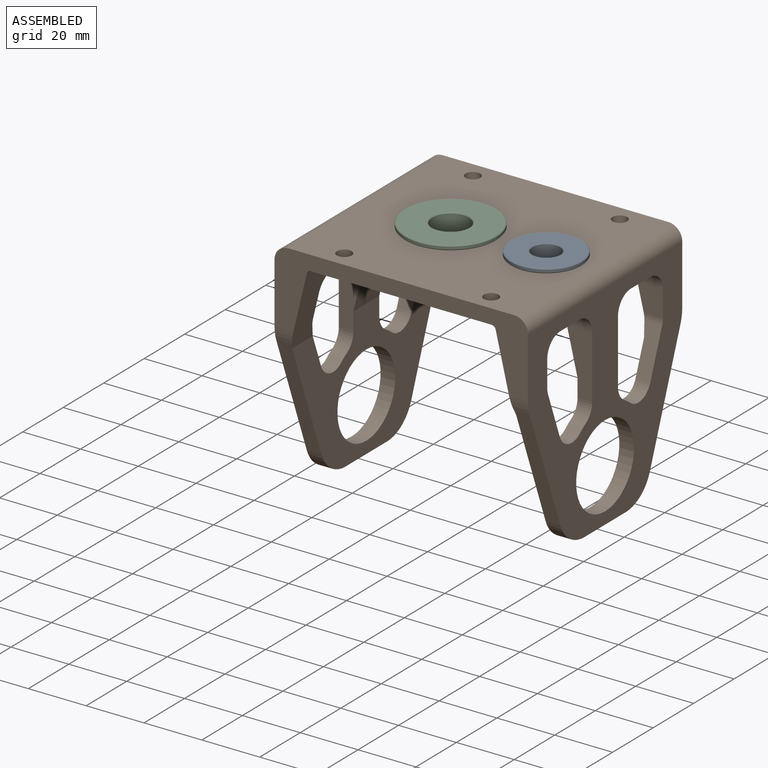
[diagram: assembled view]
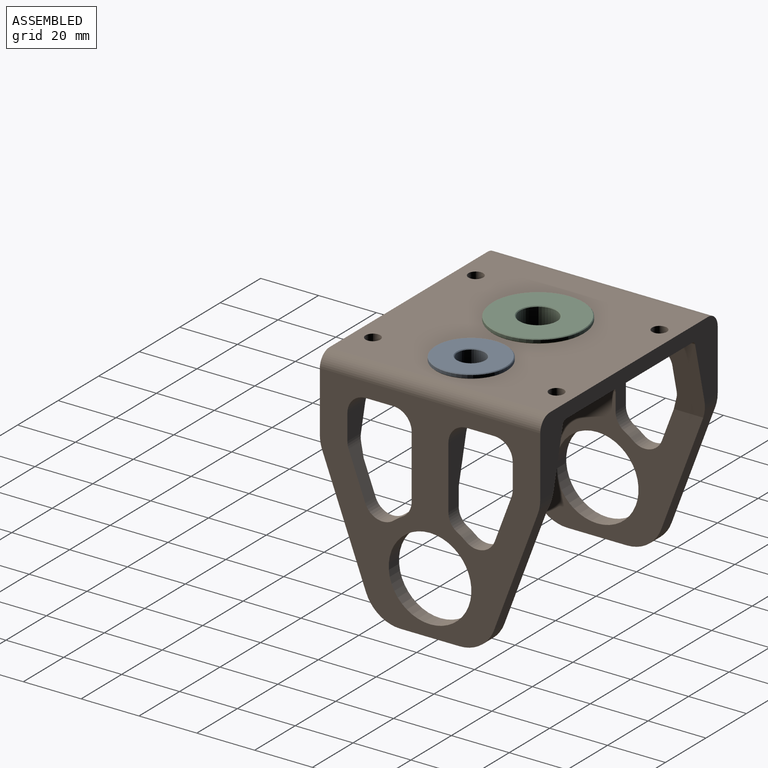
[diagram: assembled view, second angle]
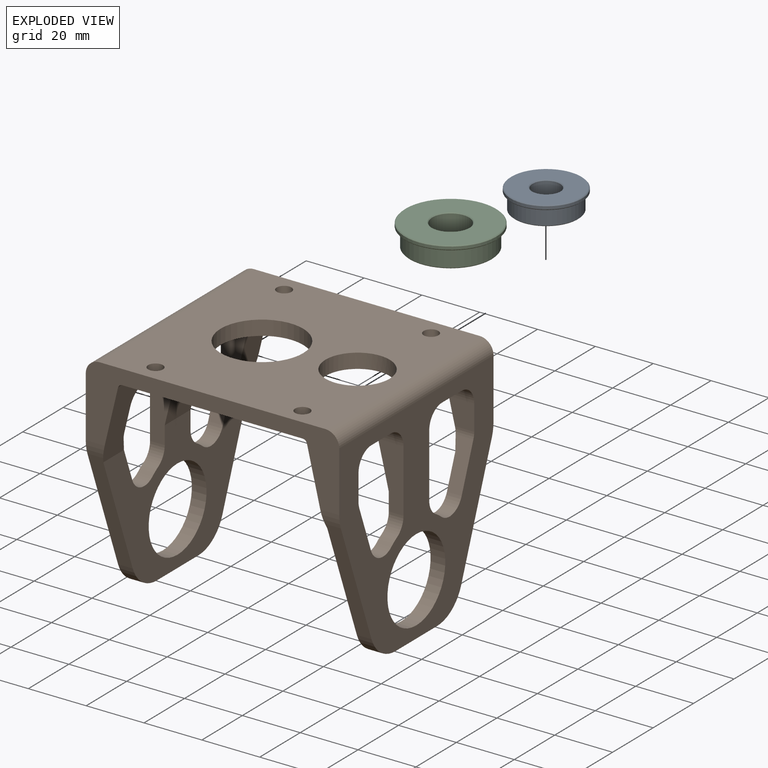
[diagram: exploded view]
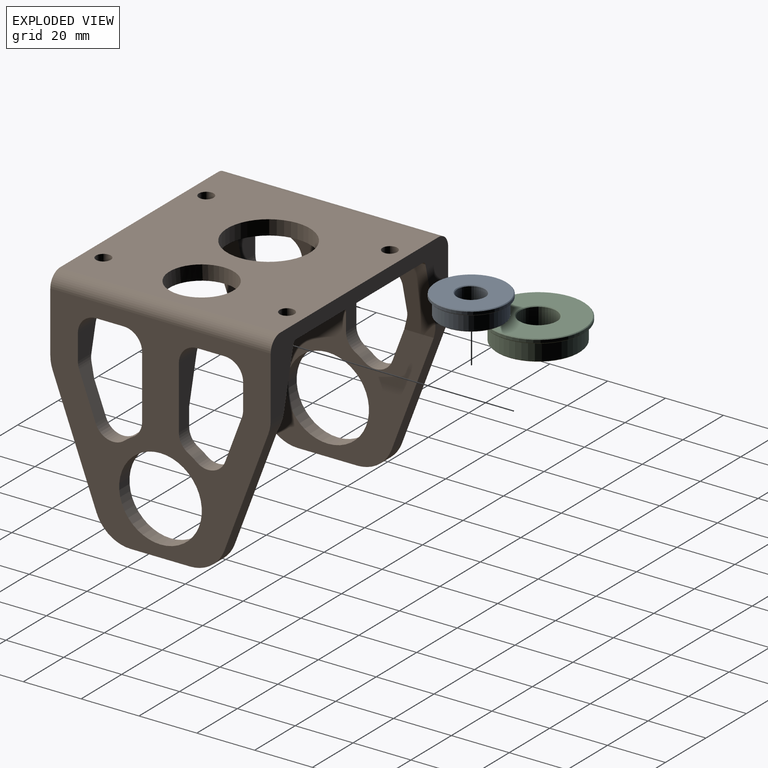
[diagram: exploded view, second angle]
ASSEMBLY  parts=3 mates=2
PART A: 11 faces, bbox 7.2x24.7x24.7 mm
  f0: cone r=12.35mm half-angle=45deg, axis (1,0,0), area 27.1mm2, adj f7,f9
  f1: cone r=12.1mm half-angle=45deg, axis (-1,0,0), area 27.1mm2, adj f7,f8
  f2: cone r=10.87mm half-angle=45deg, axis (-1,0,0), area 24.4mm2, adj f6,f10
  f3: cone r=4.77mm half-angle=45deg, axis (1,0,0), area 10.9mm2, adj f5,f10
  f4: cone r=5.02mm half-angle=45deg, axis (-1,0,0), area 10.9mm2, adj f5,f9
  f5: cylinder r=4.77mm len=9.53mm, axis (1,0,0), area 199.4mm2, adj f3,f4
  f6: cylinder r=11.12mm len=22.23mm, axis (-1,0,0), area 376.4mm2, adj f2,f8
  f7: cylinder r=12.35mm len=24.69mm, axis (-1,0,0), area 79.1mm2, adj f0,f1
  f8: plane 24.19x24.19mm, normal (1,0,0), area 71.5mm2, adj f1,f6
  f9: plane 24.19x24.19mm, normal (-1,0,0), area 380.6mm2, adj f0,f4
  f10: plane 21.73x21.73mm, normal (1,0,0), area 291.8mm2, adj f2,f3
PART B: 80 faces, bbox 79.4x76.8x88.3 mm
  f0: cylinder r=2.55mm len=5.11mm, axis (-1,0,0), area 81.5mm2, adj f14,f19
  f1: cylinder r=2.55mm len=5.11mm, axis (-1,0,0), area 81.5mm2, adj f14,f19
  f2: cylinder r=2.55mm len=5.11mm, axis (-1,0,0), area 81.5mm2, adj f14,f19
  f3: cylinder r=2.55mm len=5.11mm, axis (-1,0,0), area 81.5mm2, adj f14,f19
  f4: cylinder r=14.28mm len=28.56mm, axis (-1,0,0), area 455.8mm2, adj f14,f19
  f5: cylinder r=14.29mm len=28.58mm, axis (0,0,-1), area 456mm2, adj f10,f12
  f6: cylinder r=14.29mm len=28.58mm, axis (0,0,-1), area 456mm2, adj f16,f18
  f7: cylinder r=11.11mm len=22.21mm, axis (-1,0,0), area 444.6mm2, adj f13,f14,f19,f22,f25
  f8: cylinder r=1.52mm len=12.7mm, axis (0,1,0), area 4.5mm2, adj f12,f13,f40,f52
  f9: cylinder r=1.52mm len=10.31mm, axis (0,1,0), area 3.6mm2, adj f12,f13,f28,f42
  f10: plane 76.2x73.98mm, normal (0,0,1), area 2604.8mm2, adj f5,f11,f20,f21,f27,f28,f30,f32
  f11: plane 20.5x5.08mm, normal (1,0,0), area 104.1mm2, adj f10,f12,f38,f39
  f12: plane 73.21x46.81mm, normal (0,0,-1), area 1476mm2, adj f5,f8,f9,f11,f23,f28,f30,f38
  f13: plane 76.84x25.96mm, normal (0.23,0,-0.97), area 960.5mm2, adj f7,f8,f9,f20,f21,f22,f23,f25
  f14: plane 76.2x62.36mm, normal (1,0,0), area 3679.8mm2, adj f0,f1,f2,f3,f4,f7,f20,f21
  f15: plane 76.84x26.13mm, normal (0.23,0,0.97), area 1037.6mm2, adj f16,f20,f21,f24,f29,f31,f33,f34
  f16: plane 73.34x46.99mm, normal (0,0,1), area 1481.9mm2, adj f6,f15,f17,f29,f31,f36,f37,f45
  f17: plane 20.5x5.08mm, normal (1,0,0), area 104.1mm2, adj f16,f18,f36,f37
  f18: plane 76.2x73.98mm, normal (0,0,-1), area 2604.8mm2, adj f6,f17,f20,f21,f26,f29,f31,f33
  f19: plane 78.11x76.2mm, normal (-1,0,0), area 4841.5mm2, adj f0,f1,f2,f3,f4,f7,f20,f21
  f20: plane 87.63x25.64mm, normal (0,1,0), area 805.3mm2, adj f10,f13,f14,f15,f18,f19,f24,f25
  f21: plane 87.63x25.64mm, normal (0,-1,0), area 805.3mm2, adj f10,f13,f14,f15,f18,f19,f22,f24
  f22: cylinder r=1.52mm len=31.83mm, axis (0,1,0), area 63.1mm2, adj f7,f13,f14,f21
  f23: cylinder r=1.52mm len=10.31mm, axis (0,1,0), area 3.6mm2, adj f12,f13,f30,f50
  f24: cylinder r=1.52mm len=76.2mm, axis (0,1,0), area 155.3mm2, adj f14,f15,f20,f21
  f25: cylinder r=1.52mm len=31.83mm, axis (0,1,0), area 63.1mm2, adj f7,f13,f14,f20
  f26: cylinder r=4.76mm len=76.2mm, axis (0,-1,0), area 570mm2, adj f18,f19,f20,f21
  f27: cylinder r=4.76mm len=76.2mm, axis (0,-1,0), area 570mm2, adj f10,f19,f20,f21
  f28: plane 40.4x15.15mm, normal (0.35,0.94,0), area 219.6mm2, adj f9,f10,f12,f13,f35,f39
  f29: plane 40.4x15.15mm, normal (0.35,0.94,0), area 219.6mm2, adj f15,f16,f18,f34,f37
  f30: plane 40.4x15.15mm, normal (0.35,-0.94,0), area 219.6mm2, adj f10,f12,f13,f23,f32,f38
  f31: plane 40.4x15.15mm, normal (0.35,-0.94,0), area 219.6mm2, adj f15,f16,f18,f33,f36
  f32: cylinder r=12.7mm len=6.54mm, axis (0,0,1), area 27.4mm2, adj f10,f13,f21,f30
  f33: cylinder r=12.7mm len=6.54mm, axis (0,0,1), area 27.4mm2, adj f15,f18,f21,f31
  f34: cylinder r=12.7mm len=6.54mm, axis (0,0,-1), area 27.4mm2, adj f15,f18,f20,f29
  f35: cylinder r=12.7mm len=6.54mm, axis (0,0,-1), area 27.4mm2, adj f10,f13,f20,f28
  f36: cylinder r=12.7mm len=11.89mm, axis (0,0,-1), area 78.2mm2, adj f16,f17,f18,f31
  f37: cylinder r=12.7mm len=11.89mm, axis (0,0,-1), area 78.2mm2, adj f16,f17,f18,f29
  f38: cylinder r=12.7mm len=11.89mm, axis (0,0,-1), area 78.2mm2, adj f10,f11,f12,f30
  f39: cylinder r=12.7mm len=11.89mm, axis (0,0,-1), area 78.2mm2, adj f10,f11,f12,f28
  f40: plane 21.77x8.78mm, normal (0,1,0), area 139.4mm2, adj f8,f10,f12,f13,f62,f64
  f41: plane 10.3x9.53mm, normal (1,0,0), area 98.1mm2, adj f10,f13,f61,f62
  f42: plane 15.47x6.14mm, normal (-0.35,-0.94,0), area 86.5mm2, adj f9,f10,f12,f13,f60,f63
  f43: plane 8.87x8.78mm, normal (0,-1,0), area 68.5mm2, adj f10,f13,f60,f61
  f44: cylinder r=19.37mm len=5.08mm, axis (0,0,-1), area 17.3mm2, adj f10,f12,f63,f64
  f45: cylinder r=19.37mm len=5.08mm, axis (0,0,-1), area 17.3mm2, adj f16,f18,f78,f79
  f46: plane 8.87x8.78mm, normal (0,-1,0), area 68.5mm2, adj f15,f18,f76,f77
  f47: plane 10.3x9.53mm, normal (1,0,0), area 98.1mm2, adj f15,f18,f75,f76
  f48: plane 15.47x6.14mm, normal (-0.35,-0.94,0), area 86.5mm2, adj f15,f16,f18,f77,f78
  f49: plane 21.77x8.78mm, normal (0,1,0), area 139.4mm2, adj f15,f16,f18,f75,f79
  f50: plane 15.47x6.14mm, normal (-0.35,0.94,0), area 86.5mm2, adj f10,f12,f13,f23,f65,f66
  f51: plane 8.87x8.78mm, normal (0,1,0), area 68.5mm2, adj f10,f13,f66,f67
  f52: plane 21.77x8.78mm, normal (0,-1,0), area 139.4mm2, adj f8,f10,f12,f13,f68,f69
  f53: plane 10.3x9.53mm, normal (1,0,0), area 98.1mm2, adj f10,f13,f67,f68
  f54: cylinder r=19.37mm len=5.08mm, axis (0,0,-1), area 17.3mm2, adj f10,f12,f65,f69
  f55: cylinder r=19.37mm len=5.08mm, axis (0,0,-1), area 17.3mm2, adj f16,f18,f70,f71
  f56: plane 10.3x9.53mm, normal (1,0,0), area 98.1mm2, adj f15,f18,f73,f74
  f57: plane 8.87x8.78mm, normal (0,1,0), area 68.5mm2, adj f15,f18,f72,f73
  f58: plane 21.77x8.78mm, normal (0,-1,0), area 139.4mm2, adj f15,f16,f18,f70,f74
  f59: plane 15.47x6.14mm, normal (-0.35,0.94,0), area 86.5mm2, adj f15,f16,f18,f71,f72
  f60: cylinder r=6.35mm len=6.67mm, axis (0,0,1), area 14.6mm2, adj f10,f13,f42,f43
  f61: cylinder r=6.35mm len=10.3mm, axis (0,0,1), area 95.2mm2, adj f10,f13,f41,f43
  f62: cylinder r=6.35mm len=10.3mm, axis (0,0,1), area 95.2mm2, adj f10,f13,f40,f41
  f63: cylinder r=6.35mm len=10mm, axis (0,0,-1), area 61.4mm2, adj f10,f12,f42,f44
  f64: cylinder r=6.35mm len=5.52mm, axis (0,0,-1), area 34mm2, adj f10,f12,f40,f44
  f65: cylinder r=6.35mm len=10mm, axis (0,0,-1), area 61.4mm2, adj f10,f12,f50,f54
  f66: cylinder r=6.35mm len=6.67mm, axis (0,0,1), area 14.6mm2, adj f10,f13,f50,f51
  f67: cylinder r=6.35mm len=10.3mm, axis (0,0,1), area 95.2mm2, adj f10,f13,f51,f53
  f68: cylinder r=6.35mm len=10.3mm, axis (0,0,1), area 95.2mm2, adj f10,f13,f52,f53
  f69: cylinder r=6.35mm len=5.52mm, axis (0,0,-1), area 34mm2, adj f10,f12,f52,f54
  f70: cylinder r=6.35mm len=5.52mm, axis (0,0,-1), area 34mm2, adj f16,f18,f55,f58
  f71: cylinder r=6.35mm len=10mm, axis (0,0,-1), area 61.4mm2, adj f16,f18,f55,f59
  f72: cylinder r=6.35mm len=6.67mm, axis (0,0,1), area 14.6mm2, adj f15,f18,f57,f59
  f73: cylinder r=6.35mm len=10.3mm, axis (0,0,1), area 95.2mm2, adj f15,f18,f56,f57
  f74: cylinder r=6.35mm len=10.3mm, axis (0,0,1), area 95.2mm2, adj f15,f18,f56,f58
  f75: cylinder r=6.35mm len=10.3mm, axis (0,0,1), area 95.2mm2, adj f15,f18,f47,f49
  f76: cylinder r=6.35mm len=10.3mm, axis (0,0,1), area 95.2mm2, adj f15,f18,f46,f47
  f77: cylinder r=6.35mm len=6.67mm, axis (0,0,1), area 14.6mm2, adj f15,f18,f46,f48
  f78: cylinder r=6.35mm len=10mm, axis (0,0,-1), area 61.4mm2, adj f16,f18,f45,f48
  f79: cylinder r=6.35mm len=5.52mm, axis (0,0,-1), area 34mm2, adj f16,f18,f45,f49
PART C: 11 faces, bbox 7.9x31.8x31.8 mm
  f0: cone r=6.35mm half-angle=45deg, axis (1,0,0), area 14.6mm2, adj f5,f10
  f1: cone r=14.1mm half-angle=45deg, axis (-1,0,0), area 32.1mm2, adj f6,f10
  f2: cone r=15.62mm half-angle=45deg, axis (-1,0,0), area 35.5mm2, adj f7,f8
  f3: cone r=15.88mm half-angle=45deg, axis (1,0,0), area 35.5mm2, adj f7,f9
  f4: cone r=6.6mm half-angle=45deg, axis (-1,0,0), area 14.6mm2, adj f5,f9
  f5: cylinder r=6.35mm len=12.7mm, axis (1,0,0), area 293.9mm2, adj f0,f4
  f6: cylinder r=14.35mm len=28.7mm, axis (-1,0,0), area 549.7mm2, adj f1,f8
  f7: cylinder r=15.88mm len=31.75mm, axis (-1,0,0), area 101.3mm2, adj f2,f3
  f8: plane 31.24x31.24mm, normal (1,0,0), area 119.6mm2, adj f2,f6
  f9: plane 31.24x31.24mm, normal (-1,0,0), area 629.6mm2, adj f3,f4
  f10: plane 28.19x28.19mm, normal (1,0,0), area 487.3mm2, adj f0,f1
PLACE A rot(axis=(0,1,0),90deg) t=(33.07,0,3.93)mm
PLACE B rot(axis=(0,1,0),90deg) t=(53.39,-38.1,2.41)mm
PLACE C rot(axis=(0,1,0),90deg) t=(0,0,3.94)mm
MATE fastened B.f4 <-> C.f0  axis (0,0,1) through (0,0,2.41)mm
MATE fastened A.f0 <-> B.f7  axis (0,0,-1) through (33.07,0,2.41)mm
